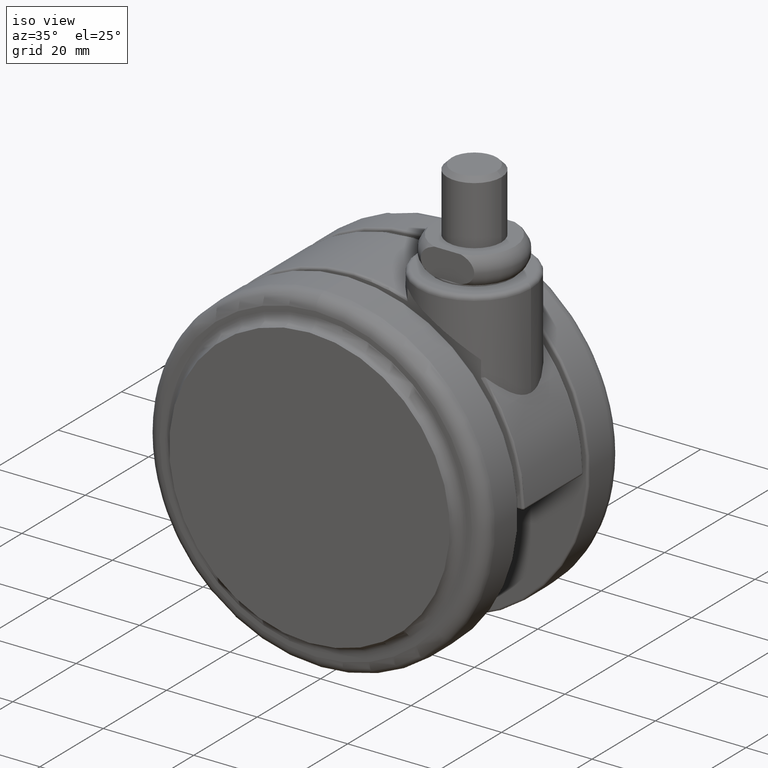
[diagram: clean part render]
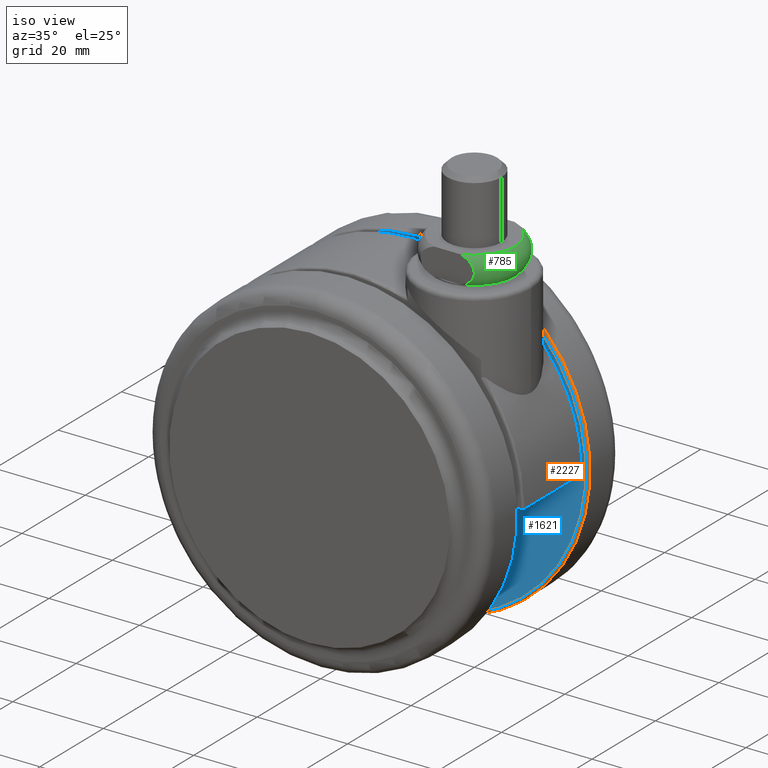
[diagram: same view with three faces highlighted in distinct colors, each labeled with its STEP entity id]
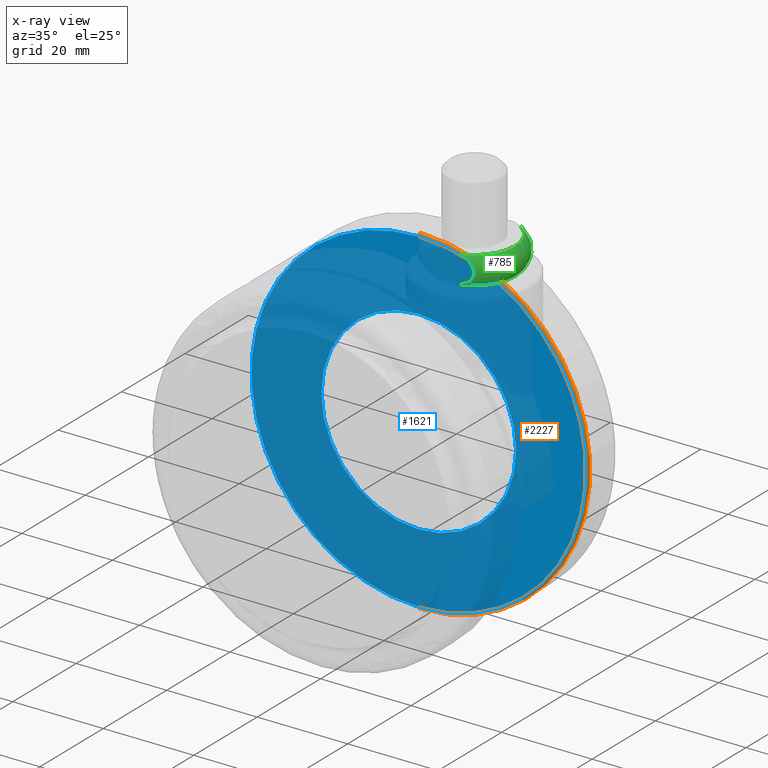
[diagram: x-ray of the same camera — body ghosted, the three highlighted faces saturated]
A machine part, iso view with three faces highlighted in distinct colors.
The next image is the same camera in x-ray (body ghosted, the three faces saturated) — at least one of them is partly hidden behind the body in this view.
Their STEP definitions:

[orange] entity #2227 — the highlighted toroidal blend (fillet) surface has major radius 37 mm and minor (blend) radius 0.5 mm.
#136 = FACE_OUTER_BOUND ( 'NONE', #2034, .T. ) ;
#142 = EDGE_CURVE ( 'NONE', #1980, #2057, #3188, .T. ) ;
#302 = AXIS2_PLACEMENT_3D ( 'NONE', #747, #1635, #2845 ) ;
#655 = CARTESIAN_POINT ( 'NONE',  ( -19.99999999999998200, 11.50000000000000000, -3.000000000000002700 ) ) ;
#747 = CARTESIAN_POINT ( 'NONE',  ( -20.00000000000000000, 11.50000000000000000, -40.50000000000000000 ) ) ;
#847 = ORIENTED_EDGE ( 'NONE', *, *, #142, .F. ) ;
#936 = ORIENTED_EDGE ( 'NONE', *, *, #3154, .F. ) ;
#960 = TOROIDAL_SURFACE ( 'NONE', #302, 37.00000000000000000, 0.5000000000000000000 ) ;
#1049 = CIRCLE ( 'NONE', #1405, 37.50000000000000000 ) ;
#1191 = CIRCLE ( 'NONE', #3280, 0.5000000000000004400 ) ;
#1304 = AXIS2_PLACEMENT_3D ( 'NONE', #1508, #1409, #1367 ) ;
#1314 = CARTESIAN_POINT ( 'NONE',  ( -20.00000000000000000, 11.50000000000000000, -40.50000000000000000 ) ) ;
#1317 = CARTESIAN_POINT ( 'NONE',  ( -20.00000000000000000, 11.00000000000000000, -40.50000000000000000 ) ) ;
#1358 = VERTEX_POINT ( 'NONE', #1573 ) ;
#1367 = DIRECTION ( 'NONE',  ( 0.0000000000000000000, -1.000000000000000000, 0.0000000000000000000 ) ) ;
#1405 = AXIS2_PLACEMENT_3D ( 'NONE', #1314, #3421, #1620 ) ;
#1409 = DIRECTION ( 'NONE',  ( -1.000000000000000000, 1.582413479254075000E-015, -1.224646799147353200E-016 ) ) ;
#1414 = EDGE_CURVE ( 'NONE', #2526, #1358, #1191, .T. ) ;
#1508 = CARTESIAN_POINT ( 'NONE',  ( -20.00000000000000400, 11.50000000000000000, -3.500000000000003100 ) ) ;
#1573 = CARTESIAN_POINT ( 'NONE',  ( -20.00000000000000000, 11.50000000000000000, -78.00000000000000000 ) ) ;
#1620 = DIRECTION ( 'NONE',  ( 0.0000000000000000000, 0.0000000000000000000, -1.000000000000000000 ) ) ;
#1623 = DIRECTION ( 'NONE',  ( 0.0000000000000000000, 0.0000000000000000000, -1.000000000000000000 ) ) ;
#1635 = DIRECTION ( 'NONE',  ( 1.582413479254075000E-015, 1.000000000000000000, 0.0000000000000000000 ) ) ;
#1980 = VERTEX_POINT ( 'NONE', #3366 ) ;
#2034 = EDGE_LOOP ( 'NONE', ( #847, #936, #3244, #3336 ) ) ;
#2057 = VERTEX_POINT ( 'NONE', #655 ) ;
#2104 = DIRECTION ( 'NONE',  ( 0.0000000000000000000, 1.000000000000000000, 0.0000000000000000000 ) ) ;
#2131 = DIRECTION ( 'NONE',  ( 1.000000000000000000, -1.582413479254075000E-015, 0.0000000000000000000 ) ) ;
#2227 = ADVANCED_FACE ( 'NONE', ( #136 ), #960, .T. ) ;
#2355 = CIRCLE ( 'NONE', #3444, 37.00000000000000000 ) ;
#2376 = CARTESIAN_POINT ( 'NONE',  ( -20.00000000000000000, 11.00000000000000000, -77.50000000000000000 ) ) ;
#2526 = VERTEX_POINT ( 'NONE', #2376 ) ;
#2845 = DIRECTION ( 'NONE',  ( 0.0000000000000000000, 0.0000000000000000000, -1.000000000000000000 ) ) ;
#3154 = EDGE_CURVE ( 'NONE', #2526, #1980, #2355, .T. ) ;
#3160 = CARTESIAN_POINT ( 'NONE',  ( -20.00000000000000000, 11.50000000000000000, -77.50000000000000000 ) ) ;
#3188 = CIRCLE ( 'NONE', #1304, 0.5000000000000004400 ) ;
#3244 = ORIENTED_EDGE ( 'NONE', *, *, #1414, .T. ) ;
#3280 = AXIS2_PLACEMENT_3D ( 'NONE', #3160, #2131, #2104 ) ;
#3336 = ORIENTED_EDGE ( 'NONE', *, *, #3664, .T. ) ;
#3366 = CARTESIAN_POINT ( 'NONE',  ( -20.00000000000000400, 11.00000000000000000, -3.500000000000003100 ) ) ;
#3421 = DIRECTION ( 'NONE',  ( -1.582413479254075000E-015, -1.000000000000000000, 0.0000000000000000000 ) ) ;
#3427 = DIRECTION ( 'NONE',  ( -1.582413479254075000E-015, -1.000000000000000000, 0.0000000000000000000 ) ) ;
#3444 = AXIS2_PLACEMENT_3D ( 'NONE', #1317, #3427, #1623 ) ;
#3664 = EDGE_CURVE ( 'NONE', #1358, #2057, #1049, .T. ) ;

[blue] entity #1621 — the highlighted planar face has unit normal (-0, -1, 0).
#246 = AXIS2_PLACEMENT_3D ( 'NONE', #2899, #2967, #2892 ) ;
#261 = VERTEX_POINT ( 'NONE', #2908 ) ;
#317 = DIRECTION ( 'NONE',  ( 0.0000000000000000000, 0.0000000000000000000, 1.000000000000000000 ) ) ;
#364 = ORIENTED_EDGE ( 'NONE', *, *, #1074, .F. ) ;
#613 = DIRECTION ( 'NONE',  ( -1.582413479254075000E-015, -1.000000000000000000, 0.0000000000000000000 ) ) ;
#626 = CIRCLE ( 'NONE', #246, 21.50000000000000000 ) ;
#930 = ORIENTED_EDGE ( 'NONE', *, *, #3852, .T. ) ;
#1074 = EDGE_CURVE ( 'NONE', #2382, #261, #626, .T. ) ;
#1130 = DIRECTION ( 'NONE',  ( -1.582413479254075000E-015, -1.000000000000000000, 0.0000000000000000000 ) ) ;
#1236 = FACE_OUTER_BOUND ( 'NONE', #2505, .T. ) ;
#1317 = CARTESIAN_POINT ( 'NONE',  ( -20.00000000000000000, 11.00000000000000000, -40.50000000000000000 ) ) ;
#1383 = CIRCLE ( 'NONE', #1955, 21.50000000000000000 ) ;
#1577 = DIRECTION ( 'NONE',  ( -1.582413479254075000E-015, -1.000000000000000000, 0.0000000000000000000 ) ) ;
#1621 = ADVANCED_FACE ( 'NONE', ( #3553, #1236 ), #2079, .T. ) ;
#1623 = DIRECTION ( 'NONE',  ( 0.0000000000000000000, 0.0000000000000000000, -1.000000000000000000 ) ) ;
#1783 = CIRCLE ( 'NONE', #1827, 37.00000000000000000 ) ;
#1808 = EDGE_CURVE ( 'NONE', #261, #2382, #1383, .T. ) ;
#1827 = AXIS2_PLACEMENT_3D ( 'NONE', #2931, #1130, #3240 ) ;
#1903 = DIRECTION ( 'NONE',  ( 0.0000000000000000000, 0.0000000000000000000, -1.000000000000000000 ) ) ;
#1955 = AXIS2_PLACEMENT_3D ( 'NONE', #3517, #1577, #1903 ) ;
#1965 = EDGE_LOOP ( 'NONE', ( #2667, #364 ) ) ;
#1980 = VERTEX_POINT ( 'NONE', #3366 ) ;
#2002 = CARTESIAN_POINT ( 'NONE',  ( -19.99999999999998200, 11.00000000000000000, -19.00000000000000400 ) ) ;
#2068 = CARTESIAN_POINT ( 'NONE',  ( -57.00000000000000000, 11.00000000000000000, -40.50000000000000000 ) ) ;
#2079 = PLANE ( 'NONE',  #2645 ) ;
#2141 = ORIENTED_EDGE ( 'NONE', *, *, #3154, .T. ) ;
#2355 = CIRCLE ( 'NONE', #3444, 37.00000000000000000 ) ;
#2376 = CARTESIAN_POINT ( 'NONE',  ( -20.00000000000000000, 11.00000000000000000, -77.50000000000000000 ) ) ;
#2382 = VERTEX_POINT ( 'NONE', #2002 ) ;
#2505 = EDGE_LOOP ( 'NONE', ( #2141, #930 ) ) ;
#2526 = VERTEX_POINT ( 'NONE', #2376 ) ;
#2645 = AXIS2_PLACEMENT_3D ( 'NONE', #2068, #613, #317 ) ;
#2667 = ORIENTED_EDGE ( 'NONE', *, *, #1808, .F. ) ;
#2892 = DIRECTION ( 'NONE',  ( 0.0000000000000000000, 0.0000000000000000000, -1.000000000000000000 ) ) ;
#2899 = CARTESIAN_POINT ( 'NONE',  ( -20.00000000000000000, 11.00000000000000000, -40.50000000000000000 ) ) ;
#2908 = CARTESIAN_POINT ( 'NONE',  ( -20.00000000000000000, 11.00000000000000000, -62.00000000000000000 ) ) ;
#2931 = CARTESIAN_POINT ( 'NONE',  ( -20.00000000000000000, 11.00000000000000000, -40.50000000000000000 ) ) ;
#2967 = DIRECTION ( 'NONE',  ( -1.582413479254075000E-015, -1.000000000000000000, 0.0000000000000000000 ) ) ;
#3154 = EDGE_CURVE ( 'NONE', #2526, #1980, #2355, .T. ) ;
#3240 = DIRECTION ( 'NONE',  ( 0.0000000000000000000, 0.0000000000000000000, -1.000000000000000000 ) ) ;
#3366 = CARTESIAN_POINT ( 'NONE',  ( -20.00000000000000400, 11.00000000000000000, -3.500000000000003100 ) ) ;
#3427 = DIRECTION ( 'NONE',  ( -1.582413479254075000E-015, -1.000000000000000000, 0.0000000000000000000 ) ) ;
#3444 = AXIS2_PLACEMENT_3D ( 'NONE', #1317, #3427, #1623 ) ;
#3517 = CARTESIAN_POINT ( 'NONE',  ( -20.00000000000000000, 11.00000000000000000, -40.50000000000000000 ) ) ;
#3553 = FACE_BOUND ( 'NONE', #1965, .T. ) ;
#3852 = EDGE_CURVE ( 'NONE', #1980, #2526, #1783, .T. ) ;

[green] entity #785 — the highlighted toroidal blend (fillet) surface has major radius 6.3542 mm and minor (blend) radius 4 mm.
#18 = CARTESIAN_POINT ( 'NONE',  ( 3.673593541409682300, -8.499999999999913000, 0.7367808984819816900 ) ) ;
#19 = CARTESIAN_POINT ( 'NONE',  ( 2.958037795423370300, 8.500000000000000000, 0.4999999999998860400 ) ) ;
#36 = CARTESIAN_POINT ( 'NONE',  ( 3.320021988970906200, 8.500000000000000000, 0.6049249122883644200 ) ) ;
#38 = B_SPLINE_CURVE_WITH_KNOTS ( 'NONE', 3,
 ( #2768, #63, #18, #1989, #3559, #3488, #3441, #3415, #2608, #2595, #2046, #2030, #1966, #1365, #1318, #3764, #1295, #1864, #859, #3902, #2028, #3416, #2178, #3944, #962, #2202, #3182, #2189, #3779, #1380 ),
 .UNSPECIFIED., .F., .F.,
 ( 4, 2, 2, 2, 2, 2, 2, 2, 2, 2, 2, 2, 2, 2, 4 ),
 ( 0.002981804292575575500, 0.004101889969981128500, 0.004661932808683906900, 0.005221975647386685300, 0.005782018486089463700, 0.006342061324792241200, 0.006902104163495020500, 0.007462147002197799800, 0.008022189840900577400, 0.008582232679603353200, 0.009142275518306130700, 0.009702318357008906500, 0.01026236119571168400, 0.01082240403441446200, 0.01194248971182001500 ),
 .UNSPECIFIED. ) ;
#63 = CARTESIAN_POINT ( 'NONE',  ( 3.320938102547085400, -8.499999999999911200, 0.6051904574097518600 ) ) ;
#65 = CARTESIAN_POINT ( 'NONE',  ( 3.673279935559310000, 8.500000000000000000, 0.7368168943553163900 ) ) ;
#72 = EDGE_CURVE ( 'NONE', #574, #2443, #2764, .T. ) ;
#106 = CARTESIAN_POINT ( 'NONE',  ( 4.343626260170866600, 8.500000000000000000, 5.916271516682070500 ) ) ;
#126 = CARTESIAN_POINT ( 'NONE',  ( 4.175340631051169800, 8.500000000000000000, 0.9878538016054926300 ) ) ;
#491 = AXIS2_PLACEMENT_3D ( 'NONE', #1227, #3337, #1530 ) ;
#574 = VERTEX_POINT ( 'NONE', #1982 ) ;
#744 = EDGE_CURVE ( 'NONE', #2263, #2669, #38, .T. ) ;
#785 = ADVANCED_FACE ( 'NONE', ( #1932 ), #1758, .T. ) ;
#859 = CARTESIAN_POINT ( 'NONE',  ( 5.729450753716800000, -8.499999999999909400, 4.422010101522777100 ) ) ;
#958 = CARTESIAN_POINT ( 'NONE',  ( 0.0000000000000000000, 0.0000000000000000000, 6.500000005047589900 ) ) ;
#962 = CARTESIAN_POINT ( 'NONE',  ( 4.654018152695882400, -8.499999999999911200, 5.711550767475449300 ) ) ;
#1131 = ORIENTED_EDGE ( 'NONE', *, *, #744, .F. ) ;
#1227 = CARTESIAN_POINT ( 'NONE',  ( 0.0000000000000000000, 0.0000000000000000000, 0.4999999999998860400 ) ) ;
#1253 = DIRECTION ( 'NONE',  ( -1.000000000000000000, 0.0000000000000000000, 0.0000000000000000000 ) ) ;
#1266 = CARTESIAN_POINT ( 'NONE',  ( 5.455471081818611600, 8.500000000000001800, 4.913523281061844500 ) ) ;
#1273 = CARTESIAN_POINT ( 'NONE',  ( 4.807307584990602400, 8.500000000000000000, 5.595383250814829300 ) ) ;
#1295 = CARTESIAN_POINT ( 'NONE',  ( 5.889184996736498900, -8.499999999999911200, 3.876710087050886600 ) ) ;
#1296 = CARTESIAN_POINT ( 'NONE',  ( 5.087615524475501700, 8.499999999999998200, 5.346348415099307700 ) ) ;
#1318 = CARTESIAN_POINT ( 'NONE',  ( 5.912677340065991800, -8.499999999999911200, 3.308535192482435300 ) ) ;
#1362 = CARTESIAN_POINT ( 'NONE',  ( 2.958037795423865000, -8.499999999999911200, 0.4999999999998860400 ) ) ;
#1365 = CARTESIAN_POINT ( 'NONE',  ( 5.888955478571253900, -8.499999999999914700, 3.122449860385664500 ) ) ;
#1380 = CARTESIAN_POINT ( 'NONE',  ( 2.958037778009625200, -8.499999999999911200, 6.500000005047589900 ) ) ;
#1442 = EDGE_LOOP ( 'NONE', ( #2122, #1924, #1131, #2741 ) ) ;
#1530 = DIRECTION ( 'NONE',  ( -1.000000000000000000, 0.0000000000000000000, 0.0000000000000000000 ) ) ;
#1550 = CARTESIAN_POINT ( 'NONE',  ( 0.0000000000000000000, 0.0000000000000000000, 3.499999999999885000 ) ) ;
#1731 = CARTESIAN_POINT ( 'NONE',  ( 2.958037795423370300, 8.500000000000000000, 0.4999999999998860400 ) ) ;
#1758 = TOROIDAL_SURFACE ( 'NONE', #3243, 6.354247999999529400, 4.000000000000000000 ) ;
#1804 = CARTESIAN_POINT ( 'NONE',  ( 4.805496139090631200, 8.500000000000001800, 1.403154424781456700 ) ) ;
#1864 = CARTESIAN_POINT ( 'NONE',  ( 5.797988713651877300, -8.499999999999909400, 4.242402309902502100 ) ) ;
#1924 = ORIENTED_EDGE ( 'NONE', *, *, #2657, .T. ) ;
#1932 = FACE_OUTER_BOUND ( 'NONE', #1442, .T. ) ;
#1966 = CARTESIAN_POINT ( 'NONE',  ( 5.798337122176991300, -8.499999999999911200, 2.758914591916869200 ) ) ;
#1982 = CARTESIAN_POINT ( 'NONE',  ( 2.958037778009130000, 8.500000000000000000, 6.499999999999619900 ) ) ;
#1989 = CARTESIAN_POINT ( 'NONE',  ( 4.178392909131842400, -8.499999999999913000, 0.9894773039334104900 ) ) ;
#2028 = CARTESIAN_POINT ( 'NONE',  ( 5.452985523429581400, -8.499999999999909400, 4.917071797860044700 ) ) ;
#2030 = CARTESIAN_POINT ( 'NONE',  ( 5.730016956536734300, -8.499999999999909400, 2.579321729980843500 ) ) ;
#2041 = DIRECTION ( 'NONE',  ( 0.0000000000000000000, 0.0000000000000000000, -1.000000000000000000 ) ) ;
#2046 = CARTESIAN_POINT ( 'NONE',  ( 5.558422470074428500, -8.499999999999913000, 2.243669333880693000 ) ) ;
#2063 = CARTESIAN_POINT ( 'NONE',  ( 5.888955475670685200, 8.500000000000001800, 3.877550157011580000 ) ) ;
#2089 = CARTESIAN_POINT ( 'NONE',  ( 5.912677338556869200, 8.500000000000000000, 3.691464825764651200 ) ) ;
#2102 = CARTESIAN_POINT ( 'NONE',  ( 5.912795228058486800, 8.499999999999998200, 3.309946801378274500 ) ) ;
#2122 = ORIENTED_EDGE ( 'NONE', *, *, #72, .F. ) ;
#2128 = CARTESIAN_POINT ( 'NONE',  ( 5.797988719368769100, 8.499999999999998200, 2.757597707165630100 ) ) ;
#2163 = CARTESIAN_POINT ( 'NONE',  ( 5.729450760723698200, 8.500000000000000000, 2.577989914978450400 ) ) ;
#2178 = CARTESIAN_POINT ( 'NONE',  ( 5.086282102795177500, -8.499999999999911200, 5.347678458073753300 ) ) ;
#2189 = CARTESIAN_POINT ( 'NONE',  ( 3.673279918959588800, -8.499999999999913000, 6.263183112504813200 ) ) ;
#2190 = CARTESIAN_POINT ( 'NONE',  ( 5.889184999646361400, 8.500000000000000000, 3.123289930474376400 ) ) ;
#2202 = CARTESIAN_POINT ( 'NONE',  ( 4.338424135825536400, -8.499999999999907600, 5.919417256496898500 ) ) ;
#2233 = CARTESIAN_POINT ( 'NONE',  ( 5.557687540133533100, 8.499999999999998200, 2.242457750426408000 ) ) ;
#2246 = CARTESIAN_POINT ( 'NONE',  ( 5.452985533873556900, 8.500000000000000000, 2.082928216990122200 ) ) ;
#2263 = VERTEX_POINT ( 'NONE', #1362 ) ;
#2296 = CARTESIAN_POINT ( 'NONE',  ( 5.216645008362958100, 8.500000000000000000, 1.787373500442042400 ) ) ;
#2372 = CARTESIAN_POINT ( 'NONE',  ( 5.086282115518916800, 8.499999999999998200, 1.652321554459616100 ) ) ;
#2443 = VERTEX_POINT ( 'NONE', #1731 ) ;
#2530 = CARTESIAN_POINT ( 'NONE',  ( 3.673593525293934000, 8.500000000000000000, 6.263219108169482600 ) ) ;
#2595 = CARTESIAN_POINT ( 'NONE',  ( 5.455471091931359600, -8.499999999999911200, 2.086476733389500900 ) ) ;
#2608 = CARTESIAN_POINT ( 'NONE',  ( 5.219615914466479500, -8.499999999999911200, 1.790658600601723500 ) ) ;
#2657 = EDGE_CURVE ( 'NONE', #574, #2669, #3542, .T. ) ;
#2669 = VERTEX_POINT ( 'NONE', #2745 ) ;
#2741 = ORIENTED_EDGE ( 'NONE', *, *, #2956, .F. ) ;
#2745 = CARTESIAN_POINT ( 'NONE',  ( 2.958037778009625200, -8.499999999999911200, 6.500000005047589900 ) ) ;
#2764 = B_SPLINE_CURVE_WITH_KNOTS ( 'NONE', 3,
 ( #3394, #3505, #2530, #3404, #106, #3250, #1273, #1296, #3212, #1266, #3080, #3827, #3038, #2063, #2089, #2102, #2190, #2128, #2163, #2233, #2246, #2296, #2372, #1804, #2995, #3907, #126, #65, #36, #19 ),
 .UNSPECIFIED., .F., .F.,
 ( 4, 2, 2, 2, 2, 2, 2, 2, 2, 2, 2, 2, 2, 2, 4 ),
 ( 0.002981804275303441700, 0.004101889952622809700, 0.004661932791282491500, 0.005221975629942175000, 0.005782018468601857700, 0.006342061307261540400, 0.006902104145921223100, 0.007462146984580905800, 0.008022189823240589300, 0.008582232661900272800, 0.009142275500559954700, 0.009702318339219636500, 0.01026236117787932000, 0.01082240401653900400, 0.01194248969385836700 ),
 .UNSPECIFIED. ) ;
#2768 = CARTESIAN_POINT ( 'NONE',  ( 2.958037795423865000, -8.499999999999911200, 0.4999999999998860400 ) ) ;
#2956 = EDGE_CURVE ( 'NONE', #2443, #2263, #3683, .T. ) ;
#2995 = CARTESIAN_POINT ( 'NONE',  ( 4.654018167417305600, 8.500000000000000000, 1.288449243163168700 ) ) ;
#3038 = CARTESIAN_POINT ( 'NONE',  ( 5.798337116546774100, 8.500000000000000000, 4.241085424907466500 ) ) ;
#3064 = DIRECTION ( 'NONE',  ( 0.0000000000000000000, 0.0000000000000000000, -1.000000000000000000 ) ) ;
#3080 = CARTESIAN_POINT ( 'NONE',  ( 5.558422460940740900, 8.500000000000000000, 4.756330681194567600 ) ) ;
#3182 = CARTESIAN_POINT ( 'NONE',  ( 4.175340615314586200, -8.499999999999909400, 6.012146206982778900 ) ) ;
#3212 = CARTESIAN_POINT ( 'NONE',  ( 5.219615902485154300, 8.500000000000000000, 5.209341412657303200 ) ) ;
#3243 = AXIS2_PLACEMENT_3D ( 'NONE', #1550, #2041, #3600 ) ;
#3250 = CARTESIAN_POINT ( 'NONE',  ( 4.657942710687452200, 8.500000000000001800, 5.708676940681424000 ) ) ;
#3337 = DIRECTION ( 'NONE',  ( 0.0000000000000000000, 0.0000000000000000000, -1.000000000000000000 ) ) ;
#3394 = CARTESIAN_POINT ( 'NONE',  ( 2.958037778009130000, 8.500000000000000000, 6.499999999999619900 ) ) ;
#3404 = CARTESIAN_POINT ( 'NONE',  ( 4.178392893720611000, 8.499999999999998200, 6.010522704488717900 ) ) ;
#3415 = CARTESIAN_POINT ( 'NONE',  ( 5.087615537005448600, -8.499999999999911200, 1.653651597249346400 ) ) ;
#3416 = CARTESIAN_POINT ( 'NONE',  ( 5.216644996340764200, -8.499999999999909400, 5.212626512802666300 ) ) ;
#3441 = CARTESIAN_POINT ( 'NONE',  ( 4.807307598654202400, -8.499999999999911200, 1.404616760106990800 ) ) ;
#3488 = CARTESIAN_POINT ( 'NONE',  ( 4.657942724861418200, -8.499999999999909400, 1.291323069595781100 ) ) ;
#3505 = CARTESIAN_POINT ( 'NONE',  ( 3.320938085845487600, 8.500000000000001800, 6.394809548353588700 ) ) ;
#3542 = CIRCLE ( 'NONE', #3676, 8.999999305340569600 ) ;
#3559 = CARTESIAN_POINT ( 'NONE',  ( 4.343626275295807000, -8.499999999999911200, 1.083728492390897600 ) ) ;
#3600 = DIRECTION ( 'NONE',  ( -1.000000000000000000, 0.0000000000000000000, 0.0000000000000000000 ) ) ;
#3676 = AXIS2_PLACEMENT_3D ( 'NONE', #958, #3064, #1253 ) ;
#3683 = CIRCLE ( 'NONE', #491, 8.999999999999550600 ) ;
#3764 = CARTESIAN_POINT ( 'NONE',  ( 5.912795226560745300, -8.499999999999914700, 3.690053216377045900 ) ) ;
#3779 = CARTESIAN_POINT ( 'NONE',  ( 3.320021971708802900, -8.499999999999914700, 6.395075093669568400 ) ) ;
#3827 = CARTESIAN_POINT ( 'NONE',  ( 5.730016949556382900, 8.500000000000001800, 4.420678286463249200 ) ) ;
#3902 = CARTESIAN_POINT ( 'NONE',  ( 5.557687530852573900, -8.499999999999909400, 4.757542264890072500 ) ) ;
#3907 = CARTESIAN_POINT ( 'NONE',  ( 4.338424151249735200, 8.500000000000000000, 1.080582752719712500 ) ) ;
#3944 = CARTESIAN_POINT ( 'NONE',  ( 4.805496125058422100, -8.499999999999911200, 5.596845586427992500 ) ) ;